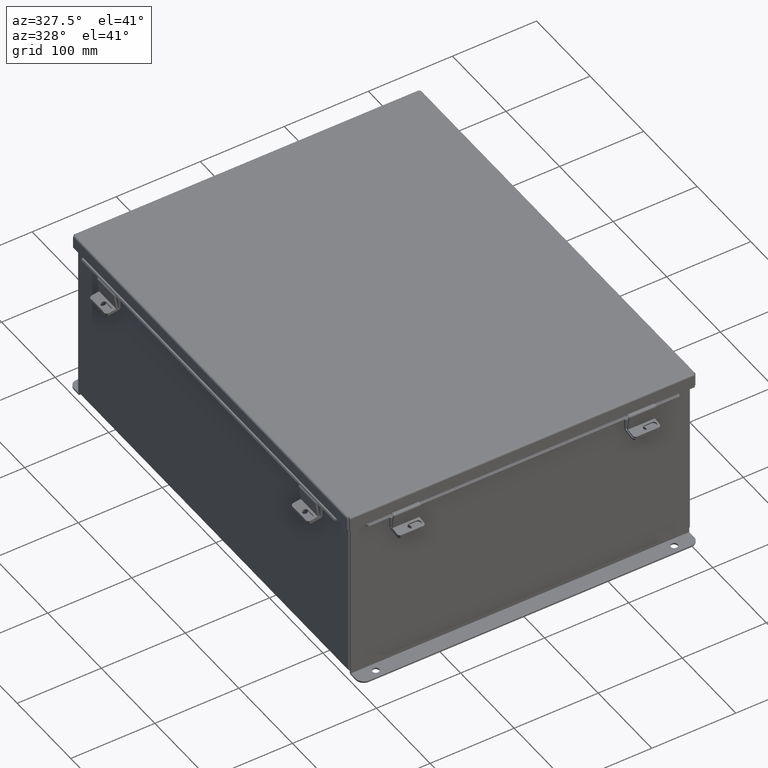
[diagram: clean part render]
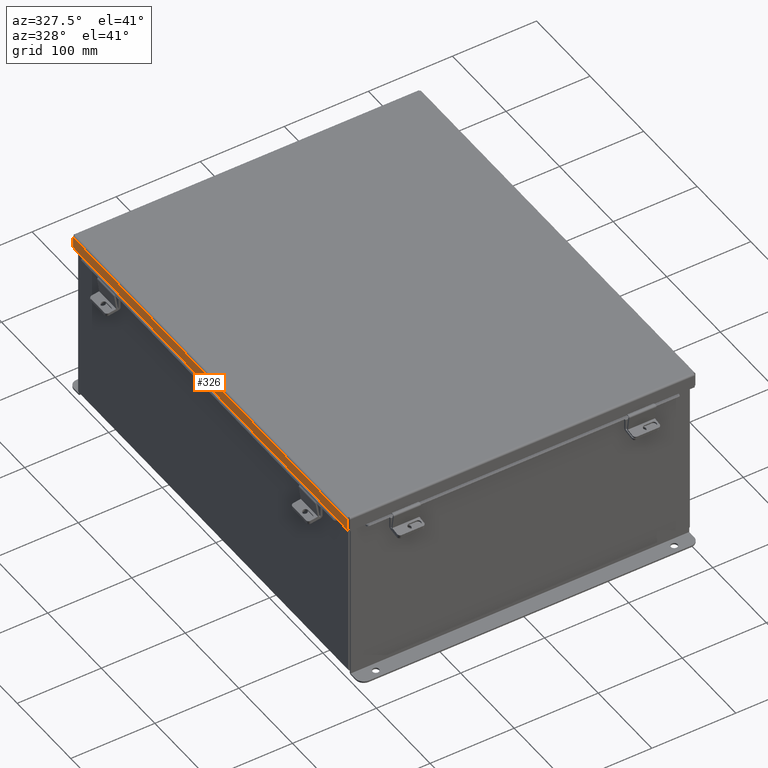
[diagram: same view with one face highlighted and labeled with its STEP entity id]
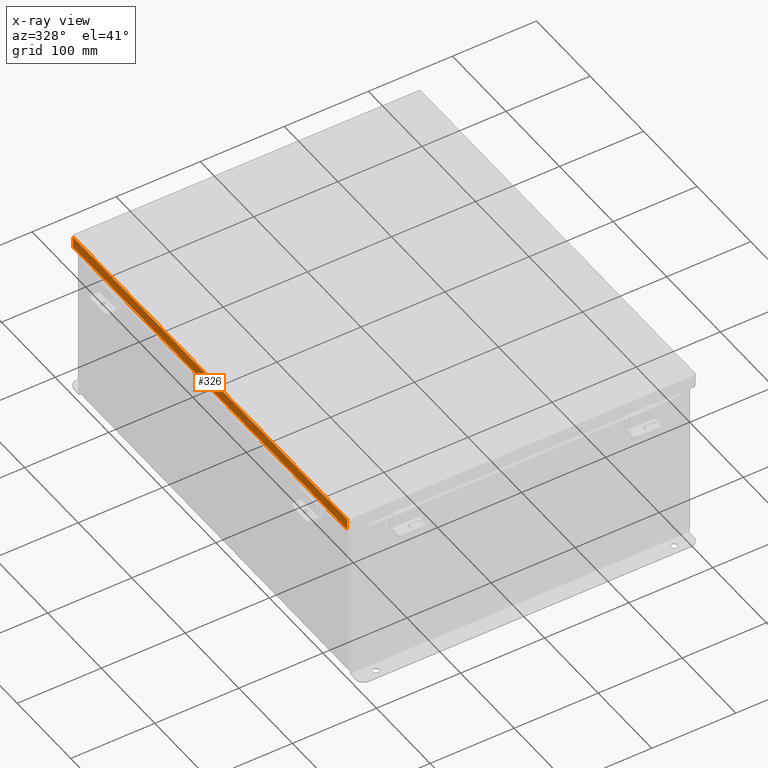
[diagram: x-ray of the same camera — body ghosted, the highlighted face saturated]
A machine part, auxiliary view. The second image highlights one B-rep face of the part: STEP entity #326.
The next image is the same camera in x-ray: the body ghosted, the highlighted face saturated — about 0% of this face is hidden behind the body in this view.
In plain terms, the highlighted planar face has unit normal (1, -0, 0).
Its self-contained STEP definition (entity closure, byte-faithful):
#14 = EDGE_CURVE ( 'NONE', #2516, #8227, #8317, .T. ) ;
#45 = LINE ( 'NONE', #963, #8130 ) ;
#326 = ADVANCED_FACE ( 'NONE', ( #8077 ), #1805, .F. ) ;
#371 = ORIENTED_EDGE ( 'NONE', *, *, #9480, .F. ) ;
#391 = LINE ( 'NONE', #4859, #1439 ) ;
#561 = ORIENTED_EDGE ( 'NONE', *, *, #7251, .F. ) ;
#568 = CARTESIAN_POINT ( 'NONE',  ( 8.156250000000037300, 9.324478932188140900, 0.5347115427318852600 ) ) ;
#701 = CARTESIAN_POINT ( 'NONE',  ( 8.156250000000037300, 0.0000000000000000000, -2.404026234424551500E-014 ) ) ;
#892 = CARTESIAN_POINT ( 'NONE',  ( 8.156250000000037300, -10.15624999999999800, 0.01299999999999901400 ) ) ;
#963 = CARTESIAN_POINT ( 'NONE',  ( 8.156250000000035500, 9.324478932188140900, 0.5347115427318852600 ) ) ;
#1312 = CARTESIAN_POINT ( 'NONE',  ( 8.156250000000037300, 10.07447893218813400, -3.278217592397115700E-014 ) ) ;
#1379 = DIRECTION ( 'NONE',  ( 3.971430846686186800E-015, 1.846427556282924300E-029, 1.000000000000000000 ) ) ;
#1439 = VECTOR ( 'NONE', #7298, 39.37007874015748100 ) ;
#1524 = CARTESIAN_POINT ( 'NONE',  ( 8.156250000000037300, 10.07447893218813400, 0.5503000000000010100 ) ) ;
#1781 = VERTEX_POINT ( 'NONE', #2292 ) ;
#1805 = PLANE ( 'NONE',  #2987 ) ;
#2066 = VECTOR ( 'NONE', #6954, 39.37007874015748100 ) ;
#2069 = LINE ( 'NONE', #892, #2066 ) ;
#2106 = DIRECTION ( 'NONE',  ( -3.166671605124525800E-030, -1.000000000000000000, -1.853823127269377700E-029 ) ) ;
#2229 = ORIENTED_EDGE ( 'NONE', *, *, #7412, .F. ) ;
#2292 = CARTESIAN_POINT ( 'NONE',  ( 8.156250000000037300, -10.07447893218813400, 0.01299999999999901400 ) ) ;
#2516 = VERTEX_POINT ( 'NONE', #1524 ) ;
#2587 = CARTESIAN_POINT ( 'NONE',  ( 8.156250000000037300, 10.07447893218813400, 0.01300000000000010700 ) ) ;
#2588 = EDGE_CURVE ( 'NONE', #7879, #3261, #391, .T. ) ;
#2606 = ORIENTED_EDGE ( 'NONE', *, *, #5242, .F. ) ;
#2987 = AXIS2_PLACEMENT_3D ( 'NONE', #701, #4514, #5042 ) ;
#3062 = DIRECTION ( 'NONE',  ( -3.504962610060284900E-013, -7.009925220120538100E-014, -1.000000000000000000 ) ) ;
#3138 = EDGE_LOOP ( 'NONE', ( #561, #5936, #2229, #4467, #9738, #8934, #371, #2606 ) ) ;
#3261 = VERTEX_POINT ( 'NONE', #3607 ) ;
#3607 = CARTESIAN_POINT ( 'NONE',  ( 8.156250000000037300, -10.07447893218813400, 0.5502999999999999000 ) ) ;
#3748 = DIRECTION ( 'NONE',  ( 3.971430846686186800E-015, 1.846427556282924300E-029, 1.000000000000000000 ) ) ;
#4381 = CARTESIAN_POINT ( 'NONE',  ( 8.156250000000037300, -9.324478932188125000, 0.5502999999999999000 ) ) ;
#4467 = ORIENTED_EDGE ( 'NONE', *, *, #8676, .F. ) ;
#4469 = DIRECTION ( 'NONE',  ( 3.166671605124525800E-030, 1.000000000000000000, 1.853823127269377700E-029 ) ) ;
#4514 = DIRECTION ( 'NONE',  ( -1.000000000000000000, -3.214874041279299500E-030, 3.971430846686186800E-015 ) ) ;
#4857 = VERTEX_POINT ( 'NONE', #6635 ) ;
#4859 = CARTESIAN_POINT ( 'NONE',  ( 8.156250000000037300, -4.268512490100411300E-018, 0.5503000000000085600 ) ) ;
#5042 = DIRECTION ( 'NONE',  ( 3.971430846686186800E-015, 1.846427556282924000E-029, 1.000000000000000000 ) ) ;
#5242 = EDGE_CURVE ( 'NONE', #4857, #8927, #7800, .T. ) ;
#5902 = VECTOR ( 'NONE', #2106, 39.37007874015748100 ) ;
#5936 = ORIENTED_EDGE ( 'NONE', *, *, #2588, .T. ) ;
#6195 = CARTESIAN_POINT ( 'NONE',  ( 8.156250000000042600, -9.324478932188125000, 0.5502999999999976800 ) ) ;
#6471 = VECTOR ( 'NONE', #3748, 39.37007874015748100 ) ;
#6635 = CARTESIAN_POINT ( 'NONE',  ( 8.156250000000037300, -9.324478932188125000, 0.5347115427318777100 ) ) ;
#6707 = LINE ( 'NONE', #8408, #6471 ) ;
#6863 = VERTEX_POINT ( 'NONE', #2587 ) ;
#6954 = DIRECTION ( 'NONE',  ( -3.166671605124525800E-030, -1.000000000000000000, -1.853823127269377700E-029 ) ) ;
#6974 = EDGE_CURVE ( 'NONE', #6863, #2516, #7943, .T. ) ;
#7048 = LINE ( 'NONE', #6195, #7065 ) ;
#7065 = VECTOR ( 'NONE', #3062, 39.37007874015748100 ) ;
#7209 = CARTESIAN_POINT ( 'NONE',  ( 8.156250000000037300, 9.324478932188144500, 0.5503000000000085600 ) ) ;
#7251 = EDGE_CURVE ( 'NONE', #7879, #4857, #7048, .T. ) ;
#7298 = DIRECTION ( 'NONE',  ( -3.166671605124525800E-030, -1.000000000000000000, -1.853823127269377700E-029 ) ) ;
#7412 = EDGE_CURVE ( 'NONE', #1781, #3261, #6707, .T. ) ;
#7769 = VECTOR ( 'NONE', #4469, 39.37007874015748100 ) ;
#7800 = LINE ( 'NONE', #9455, #7769 ) ;
#7879 = VERTEX_POINT ( 'NONE', #4381 ) ;
#7942 = VECTOR ( 'NONE', #1379, 39.37007874015748100 ) ;
#7943 = LINE ( 'NONE', #1312, #7942 ) ;
#8077 = FACE_OUTER_BOUND ( 'NONE', #3138, .T. ) ;
#8130 = VECTOR ( 'NONE', #8543, 39.37007874015748100 ) ;
#8227 = VERTEX_POINT ( 'NONE', #7209 ) ;
#8317 = LINE ( 'NONE', #9132, #5902 ) ;
#8408 = CARTESIAN_POINT ( 'NONE',  ( 8.156250000000037300, -10.07447893218813400, -1.092739197465705300E-015 ) ) ;
#8543 = DIRECTION ( 'NONE',  ( 1.401985044023958700E-013, 7.009925220119771900E-014, 1.000000000000000000 ) ) ;
#8676 = EDGE_CURVE ( 'NONE', #6863, #1781, #2069, .T. ) ;
#8927 = VERTEX_POINT ( 'NONE', #568 ) ;
#8934 = ORIENTED_EDGE ( 'NONE', *, *, #14, .T. ) ;
#9132 = CARTESIAN_POINT ( 'NONE',  ( 8.156250000000037300, -4.268512490100411300E-018, 0.5503000000000085600 ) ) ;
#9455 = CARTESIAN_POINT ( 'NONE',  ( 8.156250000000035500, -9.324478932188125000, 0.5347115427318777100 ) ) ;
#9480 = EDGE_CURVE ( 'NONE', #8927, #8227, #45, .T. ) ;
#9738 = ORIENTED_EDGE ( 'NONE', *, *, #6974, .T. ) ;